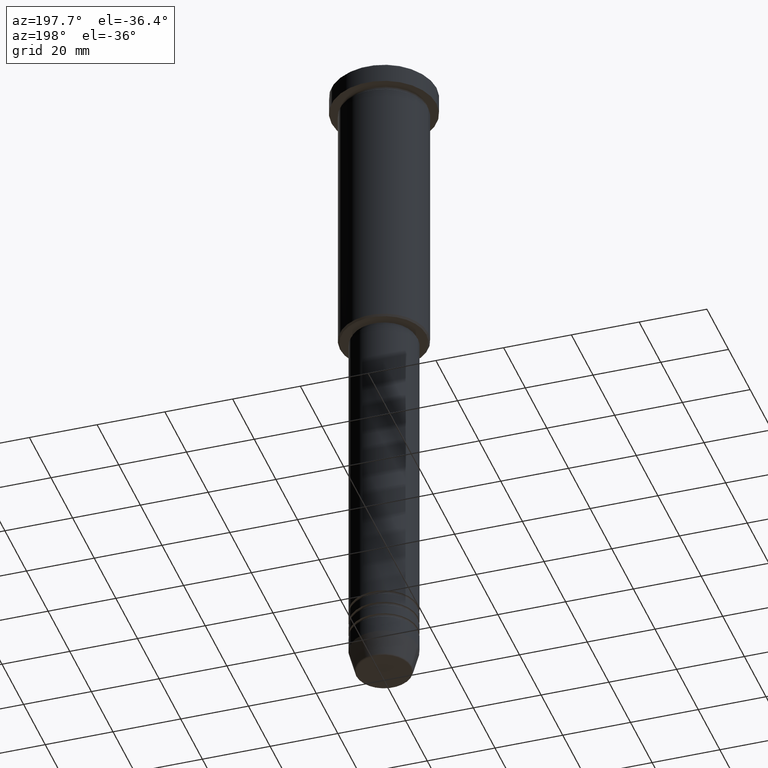
[diagram: clean part render]
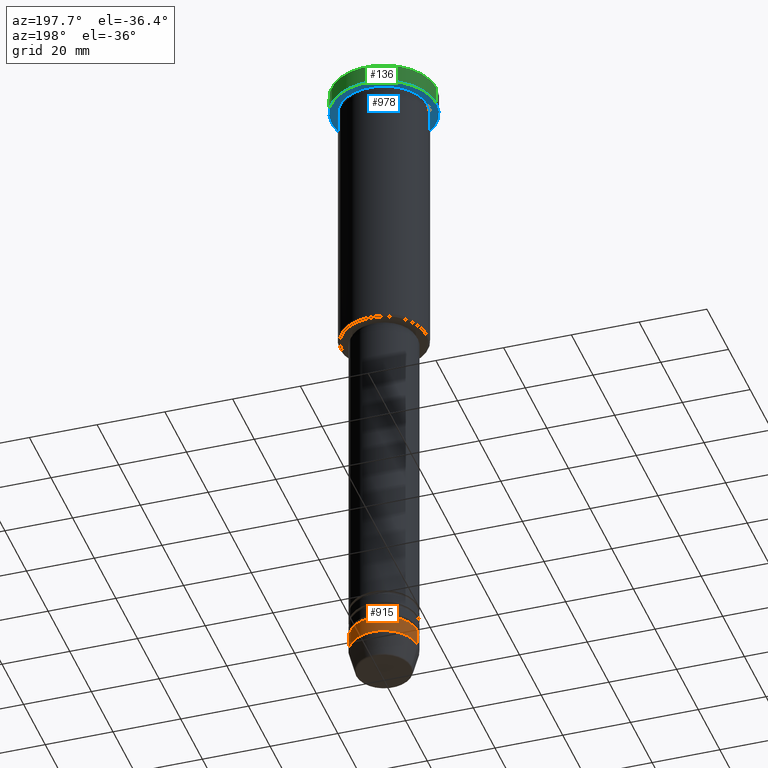
[diagram: same view with three faces highlighted in distinct colors, each labeled with its STEP entity id]
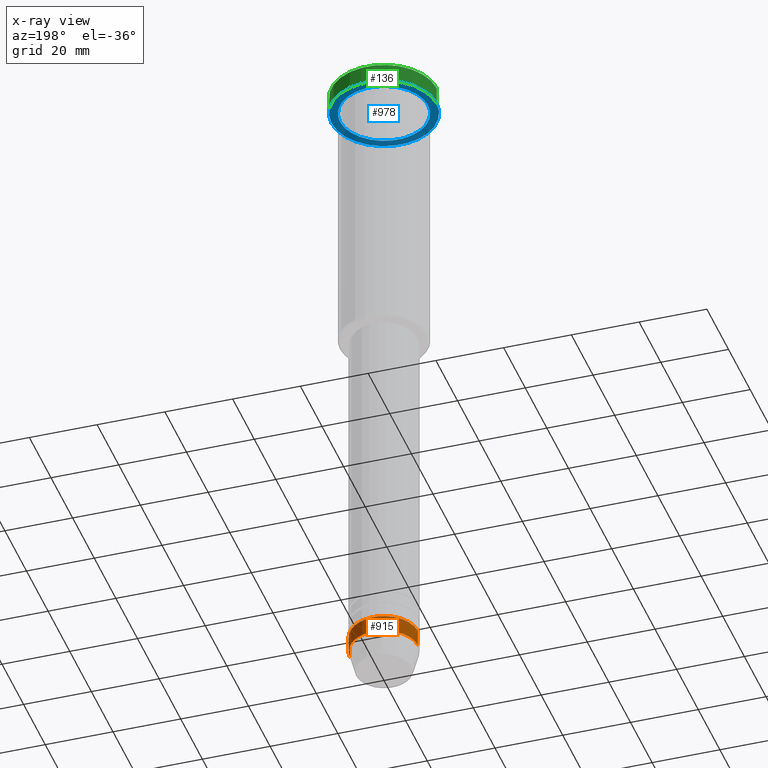
[diagram: x-ray of the same camera — body ghosted, the three highlighted faces saturated]
A machine part, auxiliary view with three faces highlighted in distinct colors.
The next image is the same camera in x-ray (body ghosted, the three faces saturated) — at least one of them is partly hidden behind the body in this view.
Their STEP definitions:

[orange] entity #915 — the highlighted cylindrical surface (edge-blend (fillet) strip) has radius 10 mm, axis along (-0, -0, 1).
#52 = AXIS2_PLACEMENT_3D ( 'NONE', #928, #111, #210 ) ;
#67 = VERTEX_POINT ( 'NONE', #257 ) ;
#92 = ORIENTED_EDGE ( 'NONE', *, *, #870, .T. ) ;
#111 = DIRECTION ( 'NONE',  ( -0.000000000000000000, -0.000000000000000000, 1.000000000000000000 ) ) ;
#137 = CARTESIAN_POINT ( 'NONE',  ( -10.00000000000000000, 1.224646799147353256E-15, -189.0000000000000284 ) ) ;
#150 = AXIS2_PLACEMENT_3D ( 'NONE', #381, #1013, #937 ) ;
#203 = CYLINDRICAL_SURFACE ( 'NONE', #52, 10.00000000000000000 ) ;
#210 = DIRECTION ( 'NONE',  ( 1.000000000000000000, 0.000000000000000000, 0.000000000000000000 ) ) ;
#243 = DIRECTION ( 'NONE',  ( -0.000000000000000000, -0.000000000000000000, 1.000000000000000000 ) ) ;
#257 = CARTESIAN_POINT ( 'NONE',  ( 10.00000000000000000, 0.000000000000000000, -194.0000000000000000 ) ) ;
#262 = LINE ( 'NONE', #620, #797 ) ;
#294 = FACE_OUTER_BOUND ( 'NONE', #1050, .T. ) ;
#381 = CARTESIAN_POINT ( 'NONE',  ( 0.000000000000000000, 0.000000000000000000, -189.0000000000000284 ) ) ;
#422 = CIRCLE ( 'NONE', #586, 10.00000000000000000 ) ;
#461 = VERTEX_POINT ( 'NONE', #905 ) ;
#509 = EDGE_CURVE ( 'NONE', #67, #973, #262, .T. ) ;
#518 = ORIENTED_EDGE ( 'NONE', *, *, #509, .F. ) ;
#557 = DIRECTION ( 'NONE',  ( 1.000000000000000000, 0.000000000000000000, 0.000000000000000000 ) ) ;
#573 = EDGE_CURVE ( 'NONE', #973, #980, #1002, .T. ) ;
#586 = AXIS2_PLACEMENT_3D ( 'NONE', #852, #834, #557 ) ;
#620 = CARTESIAN_POINT ( 'NONE',  ( 10.00000000000000000, 0.000000000000000000, 0.000000000000000000 ) ) ;
#635 = ORIENTED_EDGE ( 'NONE', *, *, #985, .T. ) ;
#698 = VECTOR ( 'NONE', #243, 1000.000000000000000 ) ;
#721 = DIRECTION ( 'NONE',  ( -0.000000000000000000, -0.000000000000000000, 1.000000000000000000 ) ) ;
#788 = CARTESIAN_POINT ( 'NONE',  ( 10.00000000000000000, 0.000000000000000000, -189.0000000000000284 ) ) ;
#797 = VECTOR ( 'NONE', #721, 1000.000000000000000 ) ;
#834 = DIRECTION ( 'NONE',  ( -0.000000000000000000, -0.000000000000000000, 1.000000000000000000 ) ) ;
#852 = CARTESIAN_POINT ( 'NONE',  ( 0.000000000000000000, 0.000000000000000000, -194.0000000000000000 ) ) ;
#870 = EDGE_CURVE ( 'NONE', #67, #461, #422, .T. ) ;
#886 = LINE ( 'NONE', #1053, #698 ) ;
#905 = CARTESIAN_POINT ( 'NONE',  ( -10.00000000000000000, 1.224646799147353256E-15, -194.0000000000000000 ) ) ;
#915 = ADVANCED_FACE ( 'NONE', ( #294 ), #203, .T. ) ;
#928 = CARTESIAN_POINT ( 'NONE',  ( 0.000000000000000000, 0.000000000000000000, 0.000000000000000000 ) ) ;
#937 = DIRECTION ( 'NONE',  ( 1.000000000000000000, 0.000000000000000000, 0.000000000000000000 ) ) ;
#973 = VERTEX_POINT ( 'NONE', #788 ) ;
#980 = VERTEX_POINT ( 'NONE', #137 ) ;
#985 = EDGE_CURVE ( 'NONE', #461, #980, #886, .T. ) ;
#1002 = CIRCLE ( 'NONE', #150, 10.00000000000000000 ) ;
#1012 = ORIENTED_EDGE ( 'NONE', *, *, #573, .F. ) ;
#1013 = DIRECTION ( 'NONE',  ( -0.000000000000000000, -0.000000000000000000, 1.000000000000000000 ) ) ;
#1050 = EDGE_LOOP ( 'NONE', ( #92, #635, #1012, #518 ) ) ;
#1053 = CARTESIAN_POINT ( 'NONE',  ( -10.00000000000000000, 1.224646799147353256E-15, 0.000000000000000000 ) ) ;

[blue] entity #978 — the highlighted planar face has unit normal (0, 0, -1).
#34 = VERTEX_POINT ( 'NONE', #896 ) ;
#62 = FACE_OUTER_BOUND ( 'NONE', #1130, .T. ) ;
#80 = EDGE_CURVE ( 'NONE', #565, #34, #485, .T. ) ;
#85 = CARTESIAN_POINT ( 'NONE',  ( 0.000000000000000000, 0.000000000000000000, -5.999999999999995559 ) ) ;
#90 = DIRECTION ( 'NONE',  ( -0.000000000000000000, -0.000000000000000000, 1.000000000000000000 ) ) ;
#105 = VERTEX_POINT ( 'NONE', #206 ) ;
#149 = DIRECTION ( 'NONE',  ( -0.000000000000000000, -0.000000000000000000, 1.000000000000000000 ) ) ;
#163 = PLANE ( 'NONE',  #1042 ) ;
#178 = ORIENTED_EDGE ( 'NONE', *, *, #80, .F. ) ;
#183 = CARTESIAN_POINT ( 'NONE',  ( 0.000000000000000000, 0.000000000000000000, -5.999999999999995559 ) ) ;
#206 = CARTESIAN_POINT ( 'NONE',  ( -13.00000000000000000, 0.000000000000000000, -5.999999999999994671 ) ) ;
#231 = CIRCLE ( 'NONE', #245, 13.00000000000000000 ) ;
#240 = EDGE_LOOP ( 'NONE', ( #1030, #443 ) ) ;
#244 = AXIS2_PLACEMENT_3D ( 'NONE', #183, #369, #540 ) ;
#245 = AXIS2_PLACEMENT_3D ( 'NONE', #431, #149, #508 ) ;
#259 = CIRCLE ( 'NONE', #889, 15.50000000000000000 ) ;
#369 = DIRECTION ( 'NONE',  ( -0.000000000000000000, -0.000000000000000000, 1.000000000000000000 ) ) ;
#417 = DIRECTION ( 'NONE',  ( -1.000000000000000000, 0.000000000000000000, -0.000000000000000000 ) ) ;
#431 = CARTESIAN_POINT ( 'NONE',  ( 0.000000000000000000, 0.000000000000000000, -5.999999999999995559 ) ) ;
#443 = ORIENTED_EDGE ( 'NONE', *, *, #944, .T. ) ;
#485 = CIRCLE ( 'NONE', #628, 15.50000000000000000 ) ;
#508 = DIRECTION ( 'NONE',  ( -1.000000000000000000, 0.000000000000000000, 0.000000000000000000 ) ) ;
#523 = DIRECTION ( 'NONE',  ( 0.000000000000000000, 0.000000000000000000, -1.000000000000000000 ) ) ;
#540 = DIRECTION ( 'NONE',  ( -1.000000000000000000, 0.000000000000000000, 0.000000000000000000 ) ) ;
#553 = CARTESIAN_POINT ( 'NONE',  ( 13.00000000000000000, 1.592040838891559095E-15, -5.999999999999994671 ) ) ;
#560 = CARTESIAN_POINT ( 'NONE',  ( 15.50000000000000000, 0.000000000000000000, -5.999999999999995559 ) ) ;
#565 = VERTEX_POINT ( 'NONE', #560 ) ;
#623 = DIRECTION ( 'NONE',  ( -0.000000000000000000, -0.000000000000000000, 1.000000000000000000 ) ) ;
#628 = AXIS2_PLACEMENT_3D ( 'NONE', #714, #90, #1001 ) ;
#668 = VERTEX_POINT ( 'NONE', #553 ) ;
#679 = CIRCLE ( 'NONE', #244, 13.00000000000000000 ) ;
#692 = FACE_BOUND ( 'NONE', #240, .T. ) ;
#693 = EDGE_CURVE ( 'NONE', #105, #668, #679, .T. ) ;
#714 = CARTESIAN_POINT ( 'NONE',  ( 0.000000000000000000, 0.000000000000000000, -5.999999999999995559 ) ) ;
#731 = EDGE_CURVE ( 'NONE', #34, #565, #259, .T. ) ;
#866 = ORIENTED_EDGE ( 'NONE', *, *, #731, .F. ) ;
#869 = CARTESIAN_POINT ( 'NONE',  ( 0.000000000000000000, 15.50000000000000000, -5.999999999999995559 ) ) ;
#889 = AXIS2_PLACEMENT_3D ( 'NONE', #85, #623, #897 ) ;
#896 = CARTESIAN_POINT ( 'NONE',  ( -15.50000000000000000, 1.898202538678397557E-15, -5.999999999999995559 ) ) ;
#897 = DIRECTION ( 'NONE',  ( 1.000000000000000000, 0.000000000000000000, 0.000000000000000000 ) ) ;
#944 = EDGE_CURVE ( 'NONE', #668, #105, #231, .T. ) ;
#978 = ADVANCED_FACE ( 'NONE', ( #692, #62 ), #163, .T. ) ;
#1001 = DIRECTION ( 'NONE',  ( 1.000000000000000000, 0.000000000000000000, 0.000000000000000000 ) ) ;
#1030 = ORIENTED_EDGE ( 'NONE', *, *, #693, .T. ) ;
#1042 = AXIS2_PLACEMENT_3D ( 'NONE', #869, #523, #417 ) ;
#1130 = EDGE_LOOP ( 'NONE', ( #178, #866 ) ) ;

[green] entity #136 — the highlighted cylindrical surface (partial cylindrical patch) has radius 15.5 mm, axis along (-0, -0, 1).
#7 = ORIENTED_EDGE ( 'NONE', *, *, #864, .F. ) ;
#22 = CARTESIAN_POINT ( 'NONE',  ( 15.50000000000000000, 0.000000000000000000, -0.5000000000000125455 ) ) ;
#30 = LINE ( 'NONE', #647, #344 ) ;
#31 = LINE ( 'NONE', #649, #32 ) ;
#32 = VECTOR ( 'NONE', #846, 1000.000000000000000 ) ;
#34 = VERTEX_POINT ( 'NONE', #896 ) ;
#80 = EDGE_CURVE ( 'NONE', #565, #34, #485, .T. ) ;
#90 = DIRECTION ( 'NONE',  ( -0.000000000000000000, -0.000000000000000000, 1.000000000000000000 ) ) ;
#136 = ADVANCED_FACE ( 'NONE', ( #315 ), #474, .T. ) ;
#266 = VERTEX_POINT ( 'NONE', #1015 ) ;
#315 = FACE_OUTER_BOUND ( 'NONE', #803, .T. ) ;
#344 = VECTOR ( 'NONE', #764, 1000.000000000000000 ) ;
#438 = ORIENTED_EDGE ( 'NONE', *, *, #1160, .T. ) ;
#474 = CYLINDRICAL_SURFACE ( 'NONE', #1183, 15.50000000000000000 ) ;
#477 = CARTESIAN_POINT ( 'NONE',  ( 0.000000000000000000, 0.000000000000000000, 0.000000000000000000 ) ) ;
#485 = CIRCLE ( 'NONE', #628, 15.50000000000000000 ) ;
#550 = VERTEX_POINT ( 'NONE', #22 ) ;
#552 = ORIENTED_EDGE ( 'NONE', *, *, #80, .T. ) ;
#560 = CARTESIAN_POINT ( 'NONE',  ( 15.50000000000000000, 0.000000000000000000, -5.999999999999995559 ) ) ;
#565 = VERTEX_POINT ( 'NONE', #560 ) ;
#628 = AXIS2_PLACEMENT_3D ( 'NONE', #714, #90, #1001 ) ;
#647 = CARTESIAN_POINT ( 'NONE',  ( -15.50000000000000000, 1.898202538678397557E-15, 0.000000000000000000 ) ) ;
#649 = CARTESIAN_POINT ( 'NONE',  ( 15.50000000000000000, 0.000000000000000000, 0.000000000000000000 ) ) ;
#714 = CARTESIAN_POINT ( 'NONE',  ( 0.000000000000000000, 0.000000000000000000, -5.999999999999995559 ) ) ;
#764 = DIRECTION ( 'NONE',  ( -0.000000000000000000, -0.000000000000000000, 1.000000000000000000 ) ) ;
#798 = DIRECTION ( 'NONE',  ( 1.000000000000000000, 0.000000000000000000, 0.000000000000000000 ) ) ;
#803 = EDGE_LOOP ( 'NONE', ( #552, #438, #1006, #7 ) ) ;
#843 = DIRECTION ( 'NONE',  ( -0.000000000000000000, -0.000000000000000000, 1.000000000000000000 ) ) ;
#846 = DIRECTION ( 'NONE',  ( -0.000000000000000000, -0.000000000000000000, 1.000000000000000000 ) ) ;
#864 = EDGE_CURVE ( 'NONE', #565, #550, #31, .T. ) ;
#896 = CARTESIAN_POINT ( 'NONE',  ( -15.50000000000000000, 1.898202538678397557E-15, -5.999999999999995559 ) ) ;
#956 = DIRECTION ( 'NONE',  ( 0.000000000000000000, 0.000000000000000000, -1.000000000000000000 ) ) ;
#968 = CIRCLE ( 'NONE', #1057, 15.50000000000000000 ) ;
#1001 = DIRECTION ( 'NONE',  ( 1.000000000000000000, 0.000000000000000000, 0.000000000000000000 ) ) ;
#1006 = ORIENTED_EDGE ( 'NONE', *, *, #1029, .T. ) ;
#1015 = CARTESIAN_POINT ( 'NONE',  ( -15.50000000000000000, 1.898202538678397557E-15, -0.5000000000000125455 ) ) ;
#1029 = EDGE_CURVE ( 'NONE', #266, #550, #968, .T. ) ;
#1057 = AXIS2_PLACEMENT_3D ( 'NONE', #1135, #956, #798 ) ;
#1108 = DIRECTION ( 'NONE',  ( 1.000000000000000000, 0.000000000000000000, 0.000000000000000000 ) ) ;
#1135 = CARTESIAN_POINT ( 'NONE',  ( 0.000000000000000000, 0.000000000000000000, -0.5000000000000125455 ) ) ;
#1160 = EDGE_CURVE ( 'NONE', #34, #266, #30, .T. ) ;
#1183 = AXIS2_PLACEMENT_3D ( 'NONE', #477, #843, #1108 ) ;